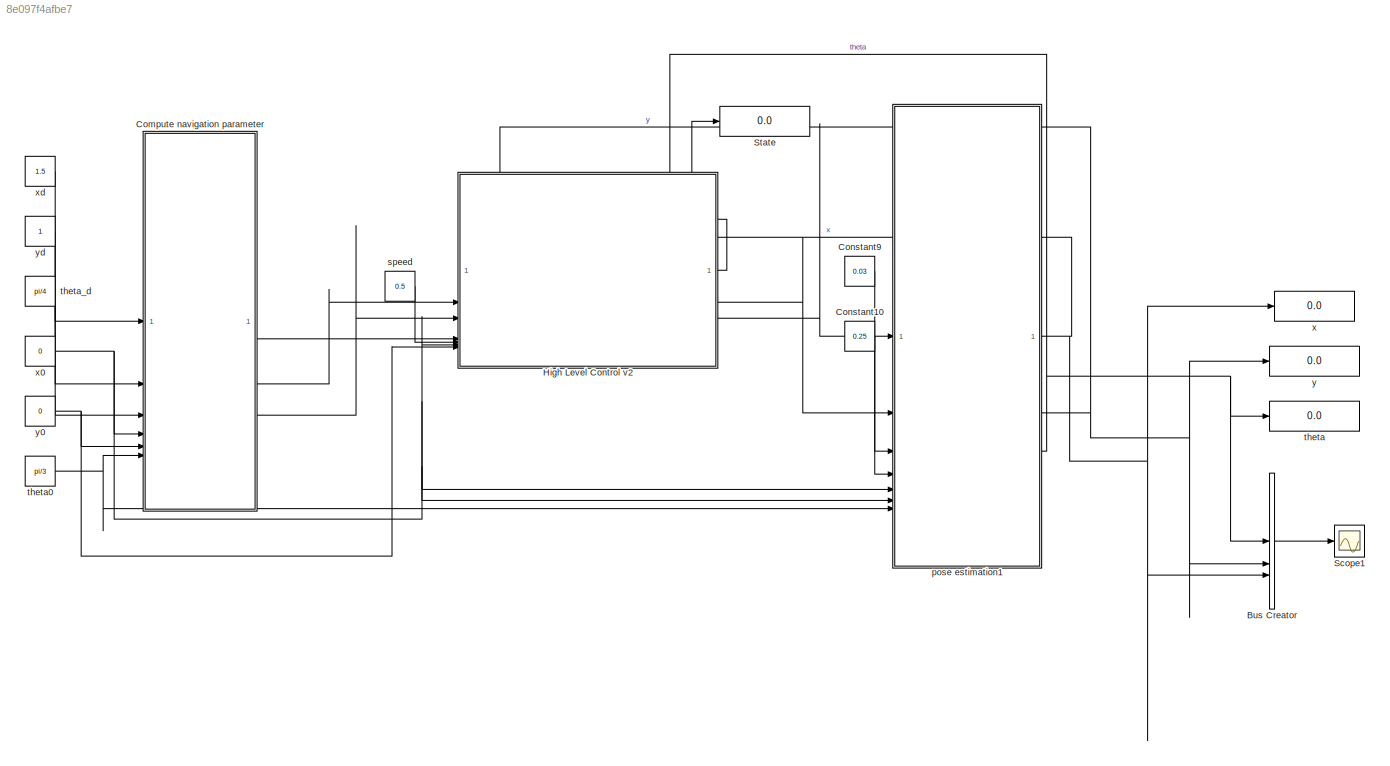
MODEL slx_8e097f4afbe7
KIND model
CONFIG AbsTol = auto
CONFIG EnableMultiTasking = off
CONFIG FixedStep = auto
CONFIG MaxStep = auto
CONFIG MinStep = auto
CONFIG RelTol = 1e-3
CONFIG SampleTimeConstraint = Unconstrained
CONFIG SolverName = VariableStepAuto
CONFIG StartTime = 0.0
CONFIG StopTime = 10.0
BLOCK [BusCreator] Bus Creator
  DisplayOption = bar
  InheritFromInputs = on
  Inputs = 3
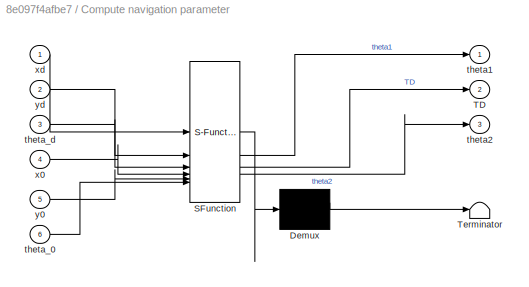
BLOCK [SubSystem] Compute navigation parameter
  ErrorFcn = Stateflow.Translate.translate
  PermitHierarchicalResolution = ExplicitOnly
  SFBlockType = MATLAB Function
  TreatAsAtomicUnit = on
BLOCK [Demux] Compute navigation parameter/ Demux 
  Outputs = 1
BLOCK [S-Function] Compute navigation parameter/ SFunction 
  EnableBusSupport = on
  FunctionName = sf_sfun
  PortCounts = [6 4]
  SFcnIsStateOwnerBlock = off
  SFunctionDeploymentMode = off
  Tag = Stateflow S-Function 1
BLOCK [Terminator] Compute navigation parameter/ Terminator 
BLOCK [Outport] Compute navigation parameter/TD
  Port = 2
BLOCK [Outport] Compute navigation parameter/theta1
BLOCK [Outport] Compute navigation parameter/theta2
  Port = 3
BLOCK [Inport] Compute navigation parameter/theta_0
  Port = 6
BLOCK [Inport] Compute navigation parameter/theta_d
  Port = 3
BLOCK [Inport] Compute navigation parameter/x0
  Port = 4
BLOCK [Inport] Compute navigation parameter/xd
BLOCK [Inport] Compute navigation parameter/y0
  Port = 5
BLOCK [Inport] Compute navigation parameter/yd
  Port = 2
BLOCK [Constant] Constant10
  Value = 0.25
BLOCK [Constant] Constant9
  Value = 0.03
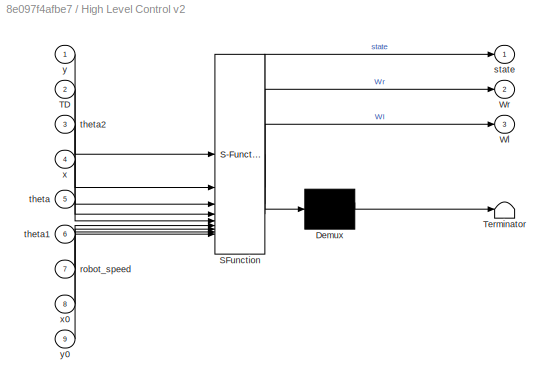
BLOCK [SubSystem] High Level Control v2
  ErrorFcn = Stateflow.Translate.translate
  PermitHierarchicalResolution = ExplicitOnly
  PortSchema = {"entries":[{"content":{"sides":[{"content":{"connectorIds":["In6","In2","In3","In7","In8","In9"]},"type":"ConnectorPlacement.EquallySpacedRectSide","uuid":"c86bd203-b0ab-41aa-b914-bef04ced142d"},{"content":{"connectorIds":["Out1","Out2","Out3"],"side":"RIGHT"},"type":"ConnectorPlacement.EquallySpacedRectSide","uuid":"adc4a676-1c74-4ba4-992a-015d2aed7172"},{"content":{"connectorIds":["In1","In4","...<+301ch>
  SFBlockType = Chart
  TreatAsAtomicUnit = on
BLOCK [Demux] High Level Control v2/ Demux 
  Outputs = 1
BLOCK [S-Function] High Level Control v2/ SFunction 
  EnableBusSupport = on
  FunctionName = sf_sfun
  PortCounts = [9 4]
  SFcnIsStateOwnerBlock = off
  SFunctionDeploymentMode = off
  Tag = Stateflow S-Function 3
BLOCK [Terminator] High Level Control v2/ Terminator 
BLOCK [Inport] High Level Control v2/TD
  Port = 2
BLOCK [Outport] High Level Control v2/Wl
  Port = 3
BLOCK [Outport] High Level Control v2/Wr
  Port = 2
BLOCK [Inport] High Level Control v2/robot_speed
  Port = 7
BLOCK [Outport] High Level Control v2/state
BLOCK [Inport] High Level Control v2/theta
  Port = 5
BLOCK [Inport] High Level Control v2/theta1
  Port = 6
BLOCK [Inport] High Level Control v2/theta2
  Port = 3
BLOCK [Inport] High Level Control v2/x
  Port = 4
BLOCK [Inport] High Level Control v2/x0
  Port = 8
BLOCK [Inport] High Level Control v2/y
BLOCK [Inport] High Level Control v2/y0
  Port = 9
BLOCK [Scope] Scope1
  Floating = off
  NumInputPorts = 1
  ScopeSpecificationString = Simulink.scopes.TimeScopeBlockCfg('CurrentConfiguration', extmgr.ConfigurationSet(extmgr.Configuration('Core','General UI',true),extmgr.Configuration('Core','Source UI',true),extmgr.Configuration('Sources','WiredSimulink',true),extmgr.Configuration('Visuals','Time Domain',true,'SerializedDisplays',{struct('MinYLimReal','-0.15812','MaxYLimReal','1.42312','YLabelReal','','MinYLimMag','0.00000','MaxY...<+1449ch>
BLOCK [Display] State
  Decimation = 1
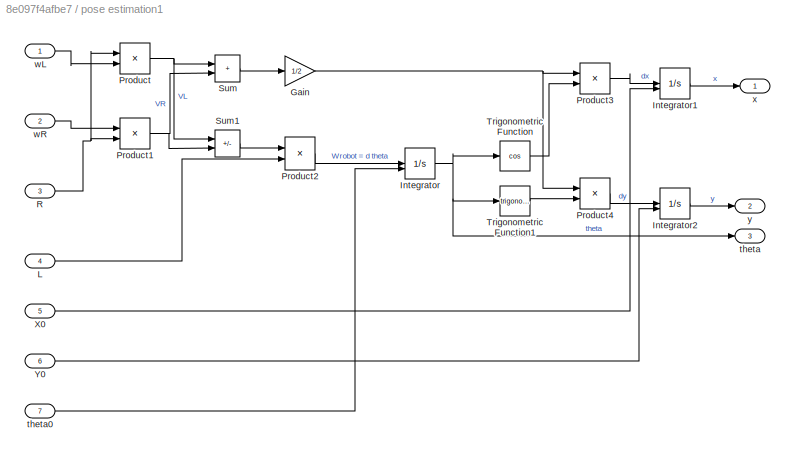
BLOCK [SubSystem] pose estimation1
BLOCK [Gain] pose estimation1/Gain
  Gain = 1/2
BLOCK [Integrator] pose estimation1/Integrator
  InitialConditionSource = external
BLOCK [Integrator] pose estimation1/Integrator1
  InitialConditionSource = external
BLOCK [Integrator] pose estimation1/Integrator2
  InitialConditionSource = external
BLOCK [Inport] pose estimation1/L
  Port = 4
BLOCK [Product] pose estimation1/Product
BLOCK [Product] pose estimation1/Product1
BLOCK [Product] pose estimation1/Product2
  Inputs = */
BLOCK [Product] pose estimation1/Product3
BLOCK [Product] pose estimation1/Product4
BLOCK [Inport] pose estimation1/R
  Port = 3
BLOCK [Sum] pose estimation1/Sum
  IconShape = rectangular
BLOCK [Sum] pose estimation1/Sum1
  IconShape = rectangular
  Inputs = +-
BLOCK [Trigonometry] pose estimation1/Trigonometric Function
  Operator = cos
BLOCK [Trigonometry] pose estimation1/Trigonometric Function1
BLOCK [Inport] pose estimation1/X0
  Port = 5
BLOCK [Inport] pose estimation1/Y0
  Port = 6
BLOCK [Outport] pose estimation1/theta
  Port = 3
BLOCK [Inport] pose estimation1/theta0
  Port = 7
BLOCK [Inport] pose estimation1/wL
BLOCK [Inport] pose estimation1/wR
  Port = 2
BLOCK [Outport] pose estimation1/x
BLOCK [Outport] pose estimation1/y
  Port = 2
BLOCK [Constant] speed
  Value = 0.5
BLOCK [Display] theta
  Decimation = 1
BLOCK [Constant] theta0
  Value = pi/3
BLOCK [Constant] theta_d
  Value = pi/4
BLOCK [Display] x
  Decimation = 1
BLOCK [Constant] x0
  Value = 0
BLOCK [Constant] xd
  Value = 1.5
BLOCK [Display] y
  Decimation = 1
BLOCK [Constant] y0
  Value = 0
BLOCK [Constant] yd
LINE Bus Creator:1 -> Scope1:1
LINE Compute navigation parameter:1 -> High Level Control v2:6
LINE Compute navigation parameter:2 -> High Level Control v2:2
LINE Compute navigation parameter:3 -> High Level Control v2:3
LINE Constant10:1 -> pose estimation1:4
LINE Constant9:1 -> pose estimation1:3
LINE High Level Control v2:1 -> State:1
LINE High Level Control v2:2 -> pose estimation1:2
LINE High Level Control v2:3 -> pose estimation1:1
NET pose estimation1/Gain:1 -> pose estimation1/Product3:1, pose estimation1/Product4:1
LINE pose estimation1/Integrator1:1 -> pose estimation1/x:1
LINE pose estimation1/Integrator2:1 -> pose estimation1/y:1
NET pose estimation1/Integrator:1 -> pose estimation1/Trigonometric Function1:1, pose estimation1/Trigonometric Function:1, pose estimation1/theta:1
LINE pose estimation1/L:1 -> pose estimation1/Product2:2
NET pose estimation1/Product1:1 -> pose estimation1/Sum1:2, pose estimation1/Sum:2
LINE pose estimation1/Product2:1 -> pose estimation1/Integrator:1
LINE pose estimation1/Product3:1 -> pose estimation1/Integrator1:1
LINE pose estimation1/Product4:1 -> pose estimation1/Integrator2:1
NET pose estimation1/Product:1 -> pose estimation1/Sum1:1, pose estimation1/Sum:1
NET pose estimation1/R:1 -> pose estimation1/Product1:2, pose estimation1/Product:1
LINE pose estimation1/Sum1:1 -> pose estimation1/Product2:1
LINE pose estimation1/Sum:1 -> pose estimation1/Gain:1
LINE pose estimation1/Trigonometric Function1:1 -> pose estimation1/Product4:2
LINE pose estimation1/Trigonometric Function:1 -> pose estimation1/Product3:2
LINE pose estimation1/X0:1 -> pose estimation1/Integrator1:2
LINE pose estimation1/Y0:1 -> pose estimation1/Integrator2:2
LINE pose estimation1/theta0:1 -> pose estimation1/Integrator:2
LINE pose estimation1/wL:1 -> pose estimation1/Product:2
LINE pose estimation1/wR:1 -> pose estimation1/Product1:1
NET pose estimation1:1 -> Bus Creator:3, High Level Control v2:4, x:1
NET pose estimation1:2 -> Bus Creator:2, High Level Control v2:1, y:1
NET pose estimation1:3 -> Bus Creator:1, High Level Control v2:5, theta:1
LINE speed:1 -> High Level Control v2:7
NET theta0:1 -> Compute navigation parameter:6, pose estimation1:7
LINE theta_d:1 -> Compute navigation parameter:3
NET x0:1 -> Compute navigation parameter:4, High Level Control v2:8, pose estimation1:5, pose estimation1:6
LINE xd:1 -> Compute navigation parameter:1
NET y0:1 -> Compute navigation parameter:5, High Level Control v2:9
LINE yd:1 -> Compute navigation parameter:2
note: NET lines group one-source signal fan-out (src -> all destinations, sorted); 1:1 wires keep LINE
CHART Compute navigation parameter states=1 transitions=1
  STATE_LABEL 'eML_blk_kernel()'
  STATE_LABEL 'SCRIPT:\nfunction [theta1, TD, theta2] = fcn(xd, yd, theta_d, x0, y0, theta_0)\n\nTD = sqrt((xd-x0).^2+ (yd-y0).^2);\n\ntheta1 = sign(yd - y0).*acos((xd-x0)/TD)-theta_0;\ntheta2 = theta_d - (theta1 + theta_0);'
CHART High Level Control v2 states=5 transitions=5
  STATE_LABEL 'state1\nentry: state= 1;\nduring:\nif (theta1 > 0)\n    Wl = robot_speed;\n    Wr = -robot_speed;\nelse\n    Wl = -robot_speed;\n    Wr = robot_speed;\nend\n'
  STATE_LABEL 'state0\nentry:state= 0;\ntheta_o = theta;\nangleObjectif = theta_o + theta1;'
  STATE_LABEL 'state2\nentry: state= 2;\nduring:\n        Wl = robot_speed;\n        Wr = robot_speed;'
  STATE_LABEL 'state3\nentry: state= 3;\nduring:\n        if (theta2 < 0)\n            Wl = robot_speed;\n            Wr = -robot_speed;\n        else\n            Wl = -robot_speed;\n            Wr = robot_speed;\n        end\n'
  STATE_LABEL 'state4\nentry:\n        Wl = 0;\n        Wr = 0;\n        state= 4;'
CHART  states=0 transitions=0
CHART  states=0 transitions=0
